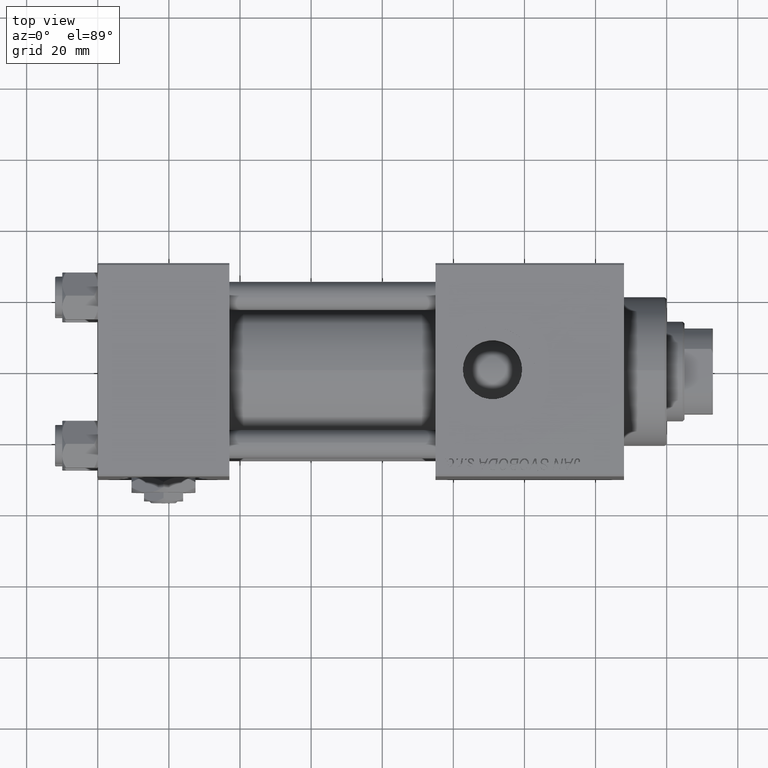
[diagram: clean part render]
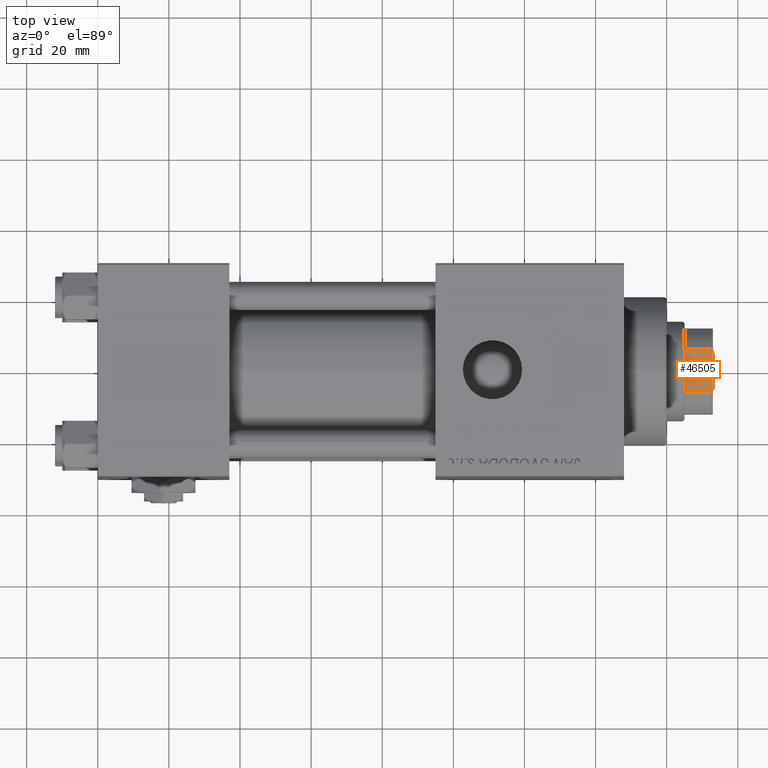
[diagram: same view with one face highlighted and labeled with its STEP entity id]
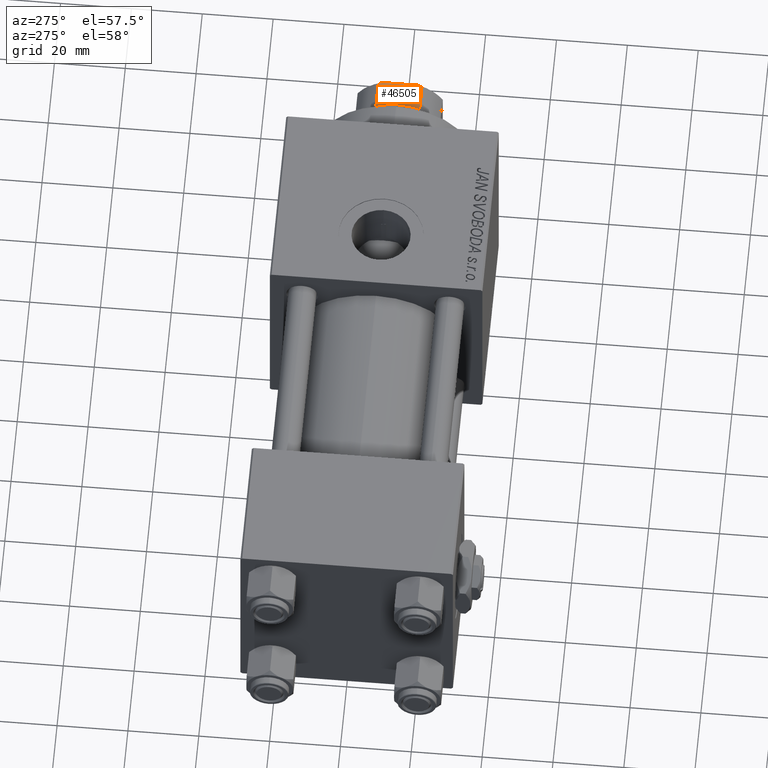
[diagram: same view with one face highlighted and labeled with its STEP entity id]
A machine part, top view. The second image highlights one B-rep face of the part: STEP entity #46505.
A second angle (auxiliary view) of the same face is appended — the face is thin or edge-on in the first view.
In plain terms, the highlighted planar face has unit normal (0, 0, -1).
Its self-contained STEP definition (entity closure, byte-faithful):
#34 = CARTESIAN_POINT ( 'NONE',  ( -5.000000000000031086, -12.00000000000000355, 136.0000000000000000 ) ) ;
#1076 = CARTESIAN_POINT ( 'NONE',  ( -5.794808544282252782, -12.00000000000000355, 135.6785991435214385 ) ) ;
#1932 = ORIENTED_EDGE ( 'NONE', *, *, #37122, .T. ) ;
#3443 = CARTESIAN_POINT ( 'NONE',  ( -6.184658438426496652, -11.99999999999999645, 128.0000000000000853 ) ) ;
#4407 = VERTEX_POINT ( 'NONE', #20035 ) ;
#5541 = CARTESIAN_POINT ( 'NONE',  ( -6.184658438426496652, -11.99999999999999645, 135.5000000000000284 ) ) ;
#7762 = CARTESIAN_POINT ( 'NONE',  ( 6.184658438426496652, -11.99999999999999645, -0.001000000000001000089 ) ) ;
#8282 = CARTESIAN_POINT ( 'NONE',  ( -11.99999999999999822, -12.00000000000000355, 136.0000000000000000 ) ) ;
#8537 = PLANE ( 'NONE',  #42317 ) ;
#8769 = ORIENTED_EDGE ( 'NONE', *, *, #9406, .T. ) ;
#9406 = EDGE_CURVE ( 'NONE', #26887, #40753, #51355, .T. ) ;
#9776 = LINE ( 'NONE', #33914, #28350 ) ;
#9849 = EDGE_CURVE ( 'NONE', #31004, #31331, #9776, .T. ) ;
#13821 = VECTOR ( 'NONE', #19837, 1000.000000000000000 ) ;
#14599 = VECTOR ( 'NONE', #22634, 1000.000000000000000 ) ;
#15032 = LINE ( 'NONE', #34203, #14599 ) ;
#16955 = ORIENTED_EDGE ( 'NONE', *, *, #50955, .T. ) ;
#19837 = DIRECTION ( 'NONE',  ( -0.000000000000000000, -0.000000000000000000, 1.000000000000000000 ) ) ;
#20035 = CARTESIAN_POINT ( 'NONE',  ( -6.184658438426496652, -11.99999999999999645, 135.5000000000000284 ) ) ;
#20097 = ORIENTED_EDGE ( 'NONE', *, *, #47438, .F. ) ;
#20349 = FACE_OUTER_BOUND ( 'NONE', #45625, .T. ) ;
#20454 = CARTESIAN_POINT ( 'NONE',  ( 6.184658438426496652, -11.99999999999999645, 135.5000000000000284 ) ) ;
#21789 = CARTESIAN_POINT ( 'NONE',  ( -5.000000000000031086, -12.00000000000000355, 136.0000000000000000 ) ) ;
#22634 = DIRECTION ( 'NONE',  ( 1.000000000000000000, 0.000000000000000000, 0.000000000000000000 ) ) ;
#24020 = DIRECTION ( 'NONE',  ( 0.000000000000000000, 1.000000000000000000, 0.000000000000000000 ) ) ;
#24228 = ORIENTED_EDGE ( 'NONE', *, *, #9849, .F. ) ;
#26887 = VERTEX_POINT ( 'NONE', #49164 ) ;
#27439 = DIRECTION ( 'NONE',  ( -0.000000000000000000, -0.000000000000000000, 1.000000000000000000 ) ) ;
#27473 = B_SPLINE_CURVE_WITH_KNOTS ( 'NONE', 3,
 ( #21789, #41491, #1076, #5541 ),
 .UNSPECIFIED., .F., .F.,
 ( 4, 4 ),
 ( 0.000000000000000000, 0.001285852097146092258 ),
 .UNSPECIFIED. ) ;
#27659 = CARTESIAN_POINT ( 'NONE',  ( 5.794808544282259888, -11.99999999999999645, 135.6785991435214385 ) ) ;
#28350 = VECTOR ( 'NONE', #42047, 1000.000000000000000 ) ;
#28697 = EDGE_CURVE ( 'NONE', #30090, #26887, #15032, .T. ) ;
#30090 = VERTEX_POINT ( 'NONE', #3443 ) ;
#31004 = VERTEX_POINT ( 'NONE', #34 ) ;
#31331 = VERTEX_POINT ( 'NONE', #48531 ) ;
#31344 = CARTESIAN_POINT ( 'NONE',  ( 6.184658438426496652, -11.99999999999999645, 135.5000000000000284 ) ) ;
#33065 = ORIENTED_EDGE ( 'NONE', *, *, #28697, .T. ) ;
#33914 = CARTESIAN_POINT ( 'NONE',  ( -11.99999999999999822, -12.00000000000000355, 136.0000000000000000 ) ) ;
#34203 = CARTESIAN_POINT ( 'NONE',  ( -11.99999999999999822, -12.00000000000000355, 128.0000000000000000 ) ) ;
#35546 = CARTESIAN_POINT ( 'NONE',  ( 5.400255697127826160, -12.00000000000000355, 135.8460555011047006 ) ) ;
#36099 = CARTESIAN_POINT ( 'NONE',  ( -6.184658438426496652, -11.99999999999999645, -0.001000000000001000089 ) ) ;
#37122 = EDGE_CURVE ( 'NONE', #40753, #31331, #38659, .T. ) ;
#38659 = B_SPLINE_CURVE_WITH_KNOTS ( 'NONE', 3,
 ( #31344, #27659, #35546, #43174 ),
 .UNSPECIFIED., .F., .F.,
 ( 4, 4 ),
 ( 0.000000000000000000, 0.001285852097146072308 ),
 .UNSPECIFIED. ) ;
#39794 = LINE ( 'NONE', #36099, #13821 ) ;
#40753 = VERTEX_POINT ( 'NONE', #20454 ) ;
#41491 = CARTESIAN_POINT ( 'NONE',  ( -5.400255697127810173, -12.00000000000000355, 135.8460555011047006 ) ) ;
#42047 = DIRECTION ( 'NONE',  ( 1.000000000000000000, 0.000000000000000000, 0.000000000000000000 ) ) ;
#42317 = AXIS2_PLACEMENT_3D ( 'NONE', #8282, #24020, #43992 ) ;
#43174 = CARTESIAN_POINT ( 'NONE',  ( 5.000000000000053291, -12.00000000000000355, 136.0000000000000000 ) ) ;
#43401 = VECTOR ( 'NONE', #27439, 1000.000000000000000 ) ;
#43992 = DIRECTION ( 'NONE',  ( 0.000000000000000000, -0.000000000000000000, 1.000000000000000000 ) ) ;
#45625 = EDGE_LOOP ( 'NONE', ( #8769, #1932, #24228, #16955, #20097, #33065 ) ) ;
#46505 = ADVANCED_FACE ( 'NONE', ( #20349 ), #8537, .F. ) ;
#47438 = EDGE_CURVE ( 'NONE', #30090, #4407, #39794, .T. ) ;
#48531 = CARTESIAN_POINT ( 'NONE',  ( 5.000000000000053291, -12.00000000000000355, 136.0000000000000000 ) ) ;
#49164 = CARTESIAN_POINT ( 'NONE',  ( 6.184658438426496652, -11.99999999999999645, 128.0000000000000853 ) ) ;
#50955 = EDGE_CURVE ( 'NONE', #31004, #4407, #27473, .T. ) ;
#51355 = LINE ( 'NONE', #7762, #43401 ) ;